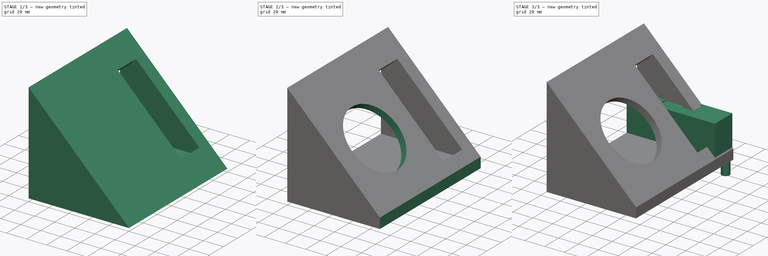
[diagram: build sequence overview — one tinted view per stage of 3, left to right]
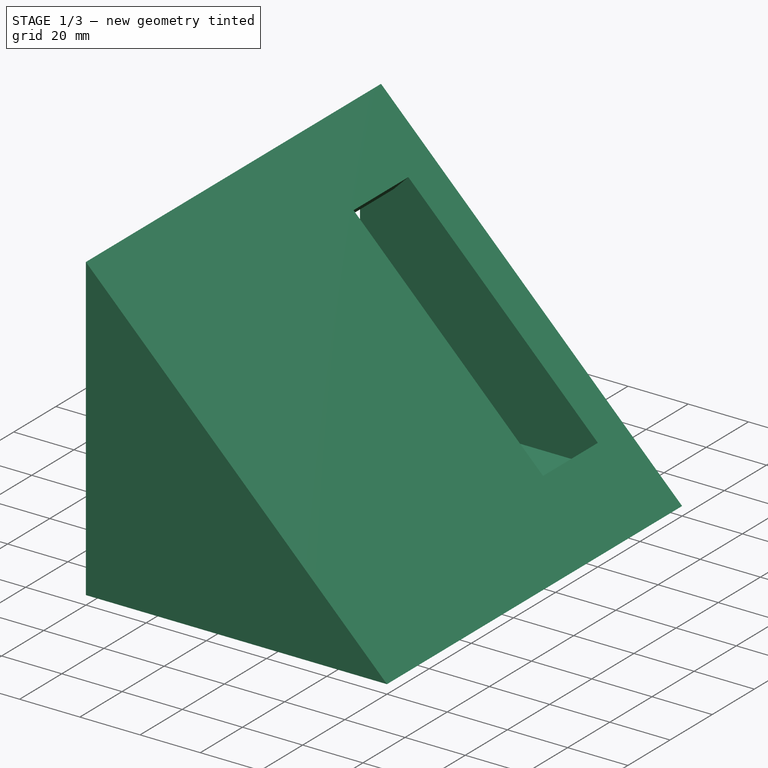
[diagram: stage 1 of 3 — iso view after this stage's code; geometry added in this stage tinted green]
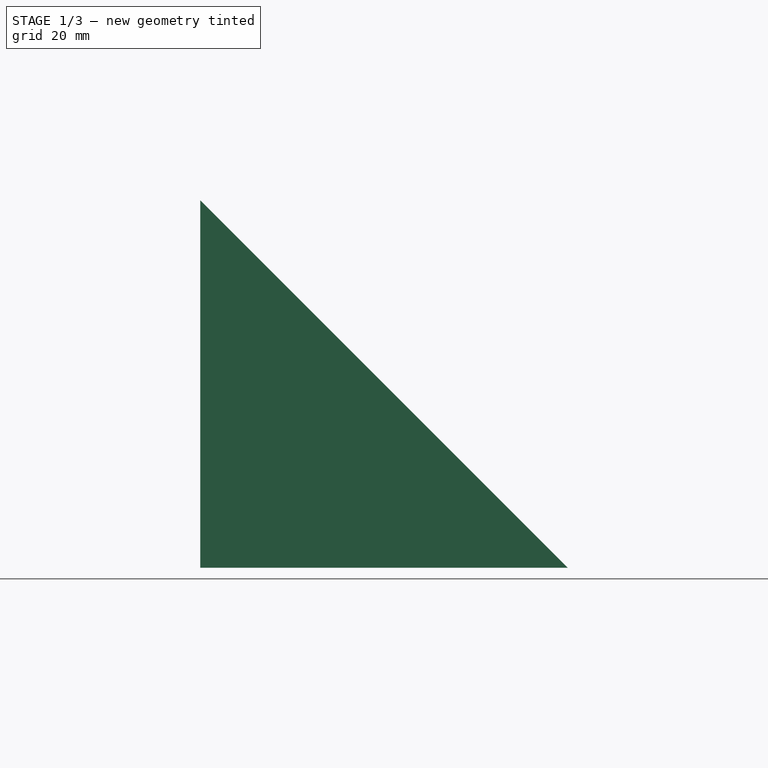
[diagram: stage 1 of 3 — front view after this stage's code; geometry added in this stage tinted green]
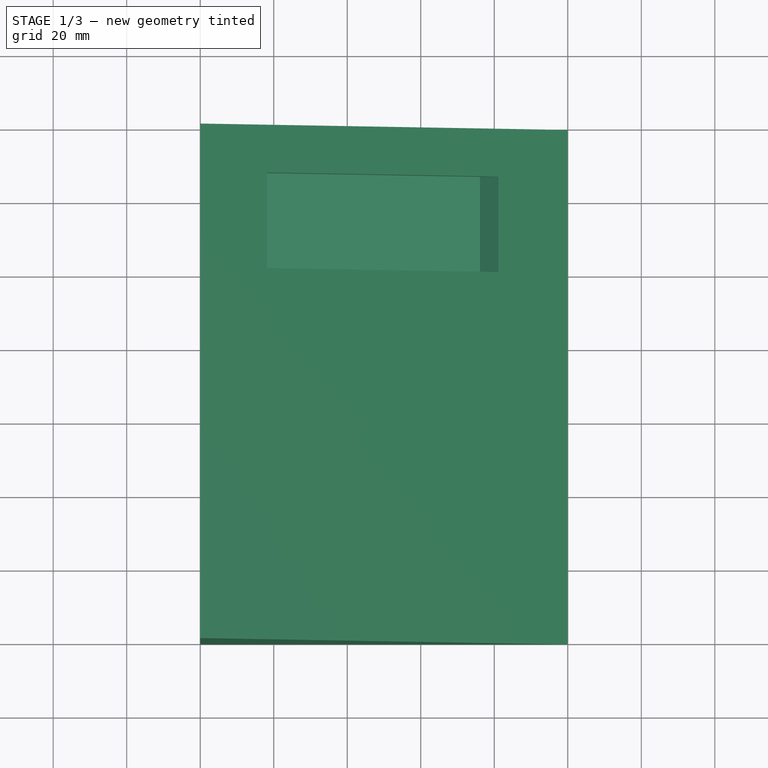
[diagram: stage 1 of 3 — top view after this stage's code; geometry added in this stage tinted green]
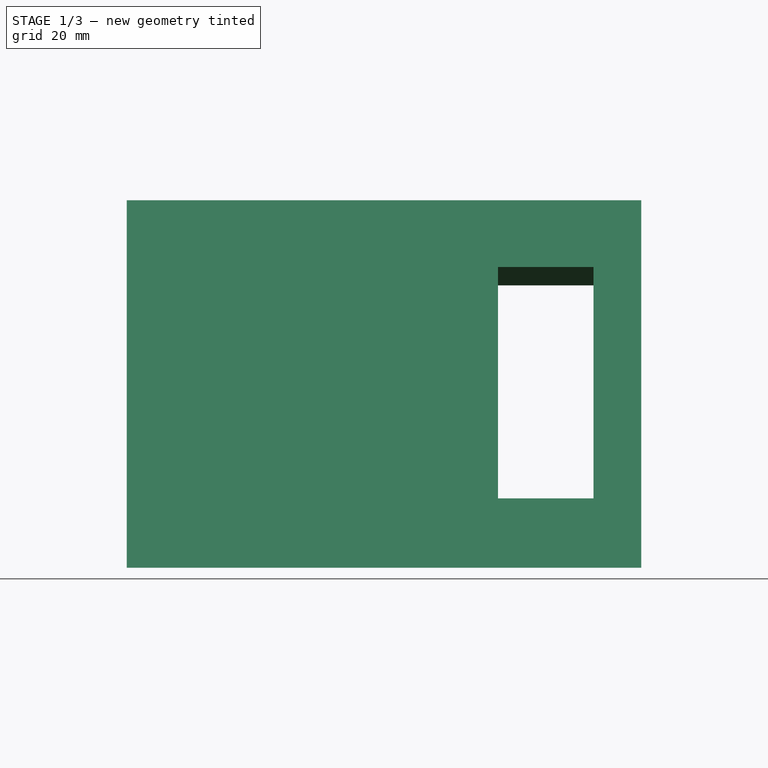
[diagram: stage 1 of 3 — right view after this stage's code; geometry added in this stage tinted green]
FCSTD DOCUMENT  (FreeCAD 0.20R29177 +426 (Git))
Label: stand
License: All rights reserved
LicenseURL: http://en.wikipedia.org/wiki/All_rights_reserved
objects: Sketcher::SketchObject×7, PartDesign::Pocket×4, PartDesign::Pad×3, PartDesign::Body×2, PartDesign::Chamfer×1
note: 25 computed .brp shape members not serialized (recipe doc carries the construction recipe); baked Part::Feature solids carry a one-line shape summary decoded from their .brp

FEATURE [Sketcher::SketchObject] Sketch
  FullyConstrained = true
  Placement = pos=(0,0,0) rot=(1,0,0;1.5708rad)
  sketch-geometry (3):
    g0: LineSegment StartX=0 StartY=0 StartZ=0 EndX=100 EndY=0 EndZ=0
    g1: LineSegment StartX=100 StartY=0 StartZ=0 EndX=0 EndY=100 EndZ=0
    g2: LineSegment StartX=0 StartY=100 StartZ=0 EndX=0 EndY=0 EndZ=0
  constraints (8):
    c: Coincident(g0,g-1)
    c: PointOnObject(g0,g-1)
    c: Coincident(g1,g0)
    c: PointOnObject(g1,g-2)
    c: Coincident(g2,g1)
    c: Coincident(g2,g0)
    c: DistanceY(g2,g2) = 100
    c: DistanceX(g0,g0) = 100
FEATURE [PartDesign::Pad] Pad
  Direction = (0,-1,2e-16)
  Length = 140
  Length2 = 10
  Placement = pos=(0,0,0) rot=(1,0,0;1.5708rad)
  Profile = -> Sketch
  ReferenceAxis = -> Sketch [N_Axis]
  Type = 0
FEATURE [PartDesign::Body] Body001
  Group = -> [Sketch001,Pad001,Sketch002,Pad002,Sketch003,Pocket]
  Origin = -> Origin001
  Placement = pos=(18,-13.5,82) rot=(0,1,0;0.785398rad)
  Tip = -> Pocket
FEATURE [Sketcher::SketchObject] Sketch004
  FullyConstrained = true
  MapMode = 5
  Placement = pos=(50,1.67e-14,50) rot=(0.382683,0,0.92388;3.14159rad)
  Support = -> [Pad]
  sketch-geometry (4):
    g0: LineSegment StartX=45 StartY=39 StartZ=0 EndX=-44 EndY=39 EndZ=0
    g1: LineSegment StartX=-44 StartY=39 StartZ=0 EndX=-44 EndY=13 EndZ=0
    g2: LineSegment StartX=-44 StartY=13 StartZ=0 EndX=45 EndY=13 EndZ=0
    g3: LineSegment StartX=45 StartY=13 StartZ=0 EndX=45 EndY=39 EndZ=0
  constraints (12):
    c: Coincident(g0,g1)
    c: Coincident(g1,g2)
    c: Coincident(g2,g3)
    c: Coincident(g3,g0)
    c: Horizontal(g0)
    c: Horizontal(g2)
    c: Vertical(g1)
    c: Vertical(g3)
    c: DistanceX(g0,g0) = 89
    c: DistanceY(g3,g3) = 26
    c: DistanceY(g-1,g2) = 13
    c: DistanceX(g1,g-1) = 44
FEATURE [PartDesign::Pocket] Pocket001
  BaseFeature = -> Pad
  Direction = (-0.707107,-2e-16,-0.707107)
  Length = 8
  Length2 = 5
  Placement = pos=(0,0,0) rot=(1,0,0;1.5708rad)
  Profile = -> Sketch004
  ReferenceAxis = -> Sketch004 [N_Axis]
  Type = 0
FEATURE [Sketcher::SketchObject] Sketch006
  AttachmentOffset = pos=(0,0,-10) rot=(0,0,1;0rad)
  FullyConstrained = false
  MapMode = 5
  Placement = pos=(0,-10,2.2e-15) rot=(-1,0,0;1.5708rad)
  Support = -> [Pad]
  sketch-geometry (3):
    g0: LineSegment StartX=0 StartY=-10 StartZ=0 EndX=80 EndY=-10 EndZ=0
    g1: LineSegment StartX=80 StartY=-10 StartZ=0 EndX=0 EndY=-90 EndZ=0
    g2: LineSegment StartX=0 StartY=-90 StartZ=0 EndX=0 EndY=-10 EndZ=0
  constraints (6):
    c: PointOnObject(g0,g-2)
    c: Horizontal(g0)
    c: Coincident(g1,g0)
    c: PointOnObject(g1,g-2)
    c: Coincident(g2,g1)
    c: Coincident(g2,g0)
FEATURE [PartDesign::Pocket] Pocket002
  BaseFeature = -> Pocket001
  Direction = (0,-1,2e-16)
  Length = 120
  Length2 = 5
  Placement = pos=(0,0,0) rot=(1,0,0;1.5708rad)
  Profile = -> Sketch006
  ReferenceAxis = -> Sketch006 [N_Axis]
  Type = 0
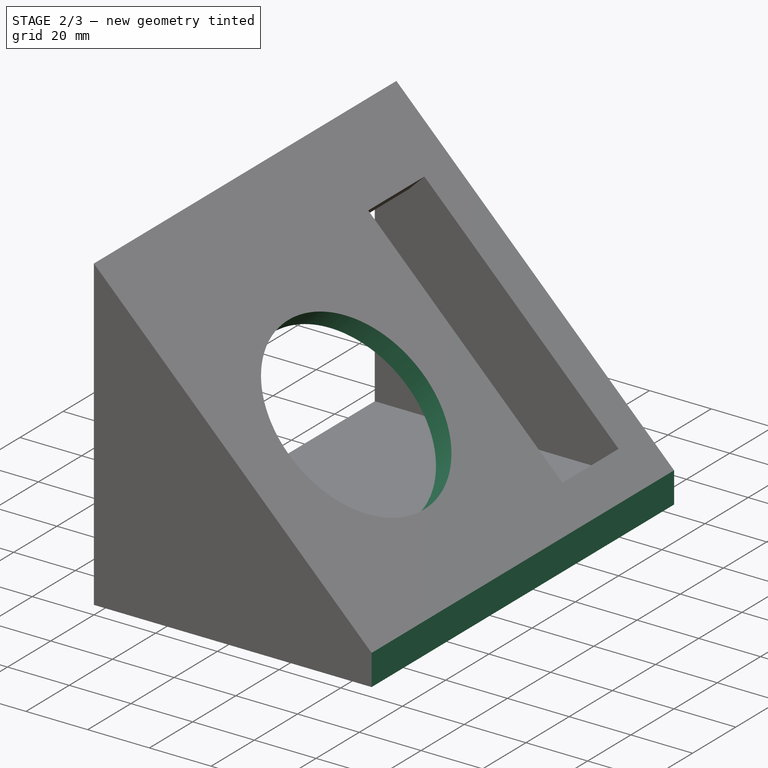
[diagram: stage 2 of 3 — iso view after this stage's code; geometry added in this stage tinted green]
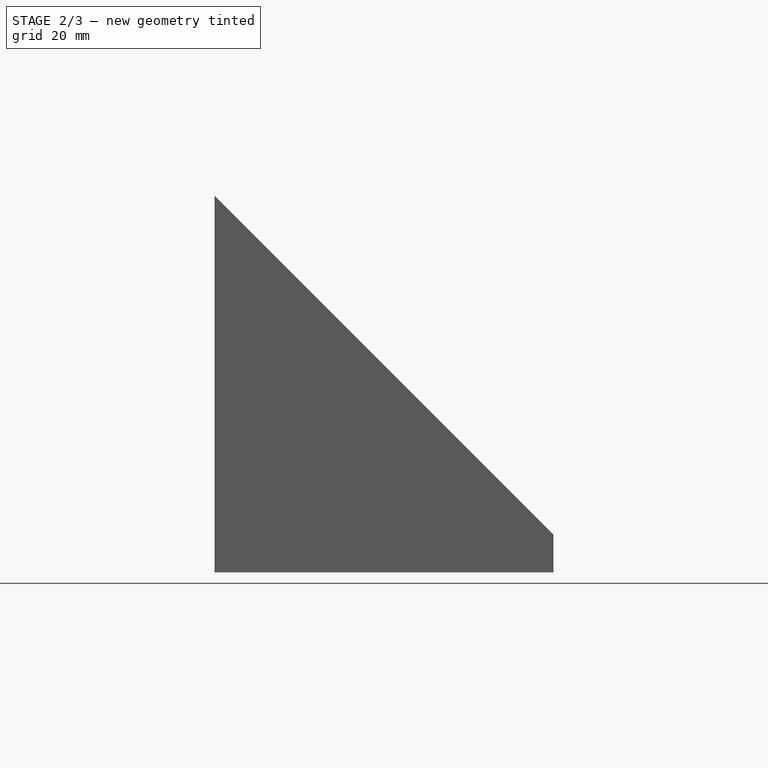
[diagram: stage 2 of 3 — front view after this stage's code; geometry added in this stage tinted green]
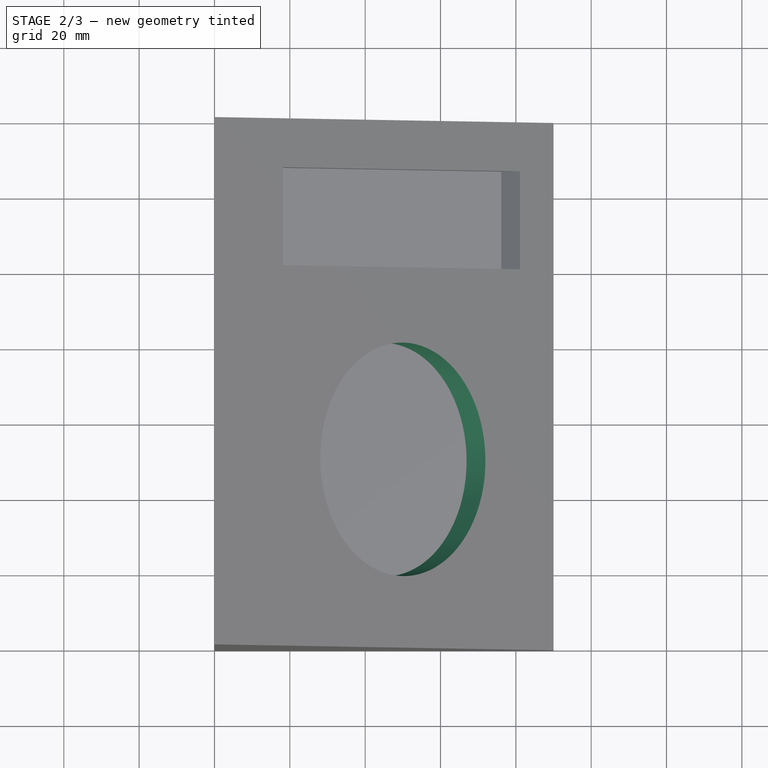
[diagram: stage 2 of 3 — top view after this stage's code; geometry added in this stage tinted green]
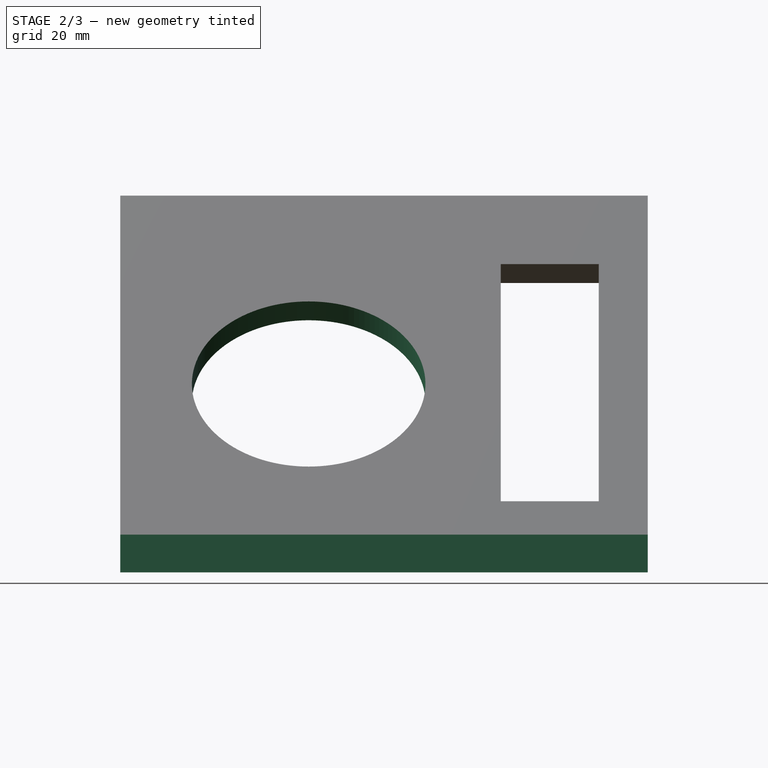
[diagram: stage 2 of 3 — right view after this stage's code; geometry added in this stage tinted green]
FEATURE [Sketcher::SketchObject] Sketch005
  FullyConstrained = true
  MapMode = 5
  Placement = pos=(50,2.78e-14,50) rot=(0.382683,0,0.92388;3.14159rad)
  Support = -> [Pocket002]
  sketch-geometry (1):
    g0: Circle CenterX=0 CenterY=90 CenterZ=0 NormalX=0 NormalY=0 NormalZ=1 AngleXU=0 Radius=31
  constraints (3):
    c: PointOnObject(g0,g-2)
    c: Diameter(g0) = 62
    c: DistanceY(g-1,g0) = 90
FEATURE [PartDesign::Pocket] Pocket003
  BaseFeature = -> Pocket002
  Direction = (-0.707107,-4e-16,-0.707107)
  Length = 0
  Length2 = 5
  Placement = pos=(0,0,0) rot=(1,0,0;1.5708rad)
  Profile = -> Sketch005
  ReferenceAxis = -> Sketch005 [N_Axis]
  Type = 2
FEATURE [PartDesign::Chamfer] Chamfer
  Angle = 90
  Base = -> Pocket003 [Edge4]
  BaseFeature = -> Pocket003
  ChamferType = 1
  FlipDirection = false
  Placement = pos=(0,0,0) rot=(1,0,0;1.5708rad)
  Size = 10
  Size2 = 14.15
  SupportTransform = false
  UseAllEdges = false
FEATURE [PartDesign::Body] Body
  Group = -> [Sketch,Pad,Sketch004,Pocket001,Sketch006,Pocket002,Sketch005,Pocket003,Chamfer]
  Origin = -> Origin
  Tip = -> Chamfer
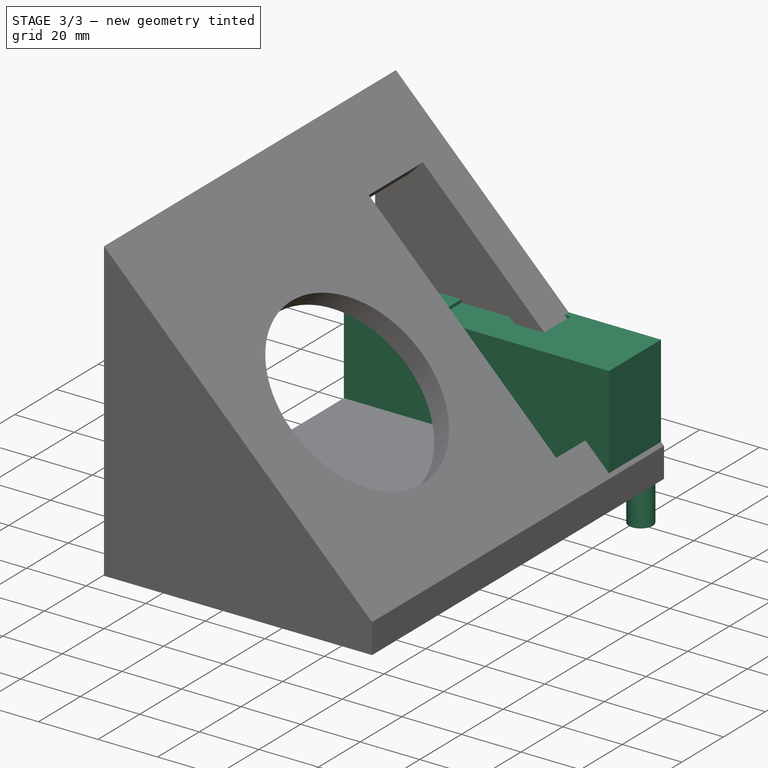
[diagram: stage 3 of 3 — iso view after this stage's code; geometry added in this stage tinted green]
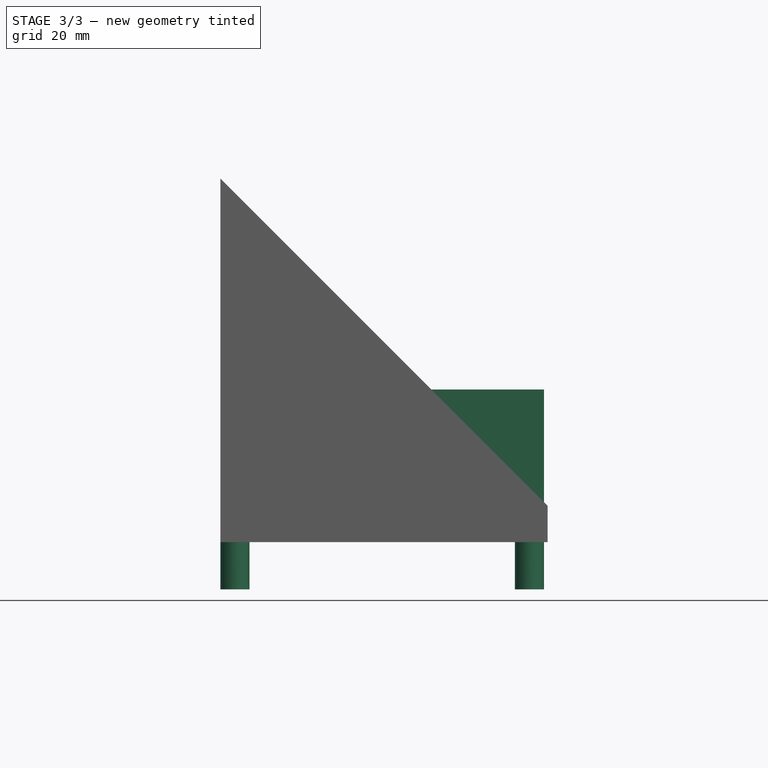
[diagram: stage 3 of 3 — front view after this stage's code; geometry added in this stage tinted green]
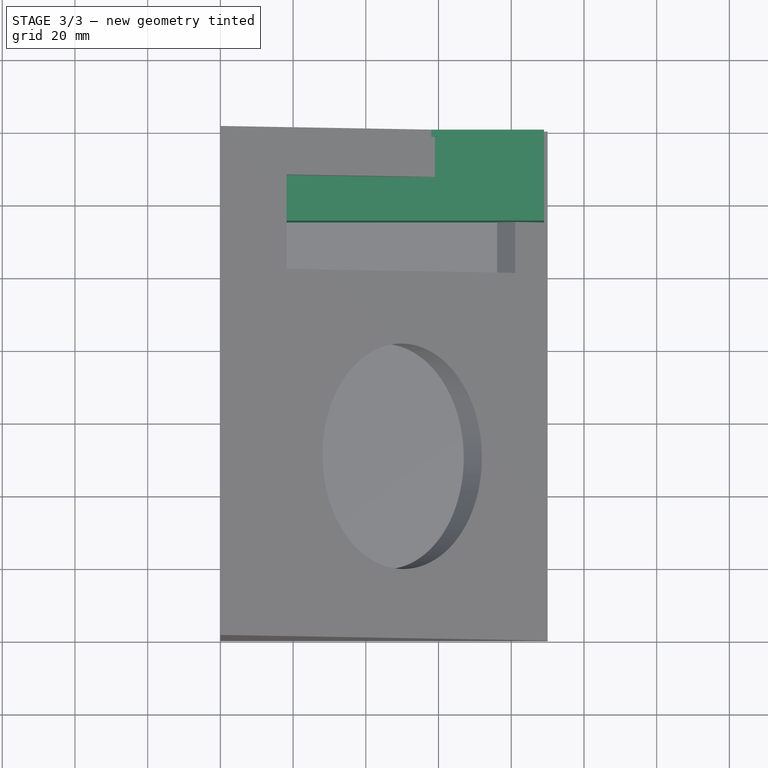
[diagram: stage 3 of 3 — top view after this stage's code; geometry added in this stage tinted green]
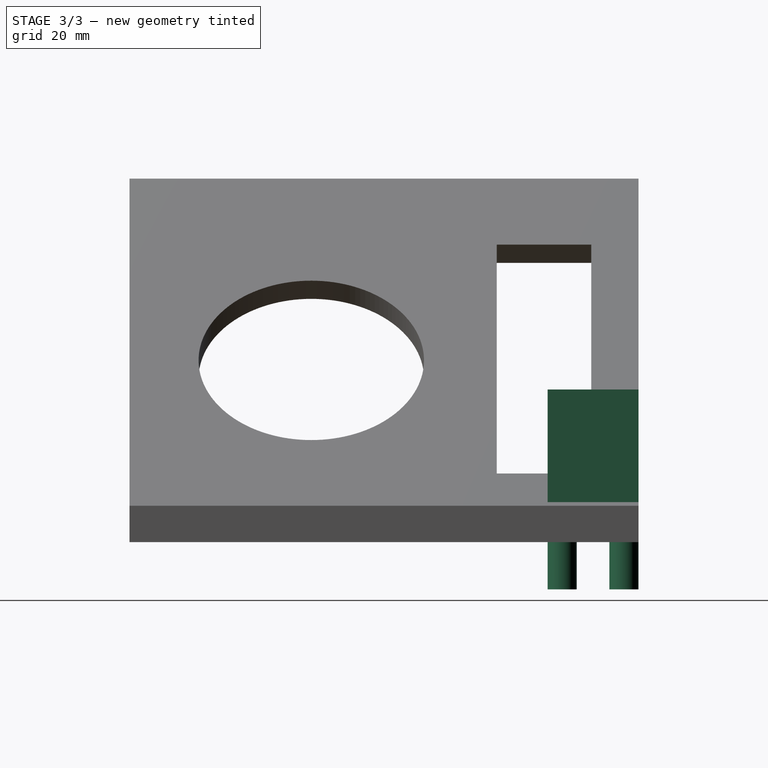
[diagram: stage 3 of 3 — right view after this stage's code; geometry added in this stage tinted green]
FEATURE [Sketcher::SketchObject] Sketch001
  FullyConstrained = true
  MapMode = 5
  Support = -> [XY_Plane001]
  sketch-geometry (4):
    g0: LineSegment StartX=0 StartY=0 StartZ=0 EndX=89 EndY=0 EndZ=0
    g1: LineSegment StartX=89 StartY=0 StartZ=0 EndX=89 EndY=-25 EndZ=0
    g2: LineSegment StartX=89 StartY=-25 StartZ=0 EndX=0 EndY=-25 EndZ=0
    g3: LineSegment StartX=0 StartY=-25 StartZ=0 EndX=0 EndY=0 EndZ=0
  constraints (11):
    c: Coincident(g0,g1)
    c: Coincident(g1,g2)
    c: Coincident(g2,g3)
    c: Coincident(g3,g0)
    c: Horizontal(g0)
    c: Horizontal(g2)
    c: Vertical(g1)
    c: Vertical(g3)
    c: Coincident(g0,g-1)
    c: DistanceX(g0,g0) = 89
    c: DistanceY(g1,g1) = 25
FEATURE [PartDesign::Pad] Pad001
  Direction = (0,0,1)
  Length = 42
  Length2 = 10
  Profile = -> Sketch001
  ReferenceAxis = -> Sketch001 [N_Axis]
  Type = 0
FEATURE [Sketcher::SketchObject] Sketch002
  FullyConstrained = true
  MapMode = 5
  Placement = pos=(0,0,0) rot=(1,0,0;3.14159rad)
  Support = -> [Pad001]
  sketch-geometry (6):
    g0: Circle CenterX=85 CenterY=4 CenterZ=0 NormalX=0 NormalY=0 NormalZ=1 AngleXU=0 Radius=4
    g1: Circle CenterX=4 CenterY=21 CenterZ=0 NormalX=0 NormalY=0 NormalZ=1 AngleXU=0 Radius=4
    g2: LineSegment StartX=0 StartY=0 StartZ=0 EndX=89 EndY=0 EndZ=0
    g3: LineSegment StartX=89 StartY=0 StartZ=0 EndX=89 EndY=25 EndZ=0
    g4: LineSegment StartX=89 StartY=25 StartZ=0 EndX=0 EndY=25 EndZ=0
    g5: LineSegment StartX=0 StartY=25 StartZ=0 EndX=0 EndY=0 EndZ=0
  constraints (17):
    c: Coincident(g2,g3)
    c: Coincident(g3,g4)
    c: Coincident(g4,g5)
    c: Coincident(g5,g2)
    c: Horizontal(g2)
    c: Horizontal(g4)
    c: Vertical(g3)
    c: Vertical(g5)
    c: Coincident(g2,g-1)
    c: DistanceX(g4,g4) = 89
    c: DistanceY(g3,g3) = 25
    c: DistanceX(g0,g2) = 4
    c: DistanceY(g2,g0) = 4
    c: Diameter(g0) = 8
    c: Diameter(g1) = 8
    c: DistanceY(g1,g4) = 4
    c: DistanceX(g4,g1) = 4
FEATURE [PartDesign::Pad] Pad002
  BaseFeature = -> Pad001
  Direction = (0,0,-1)
  Length = 13
  Length2 = 10
  Profile = -> Sketch002
  ReferenceAxis = -> Sketch002 [N_Axis]
  Type = 0
FEATURE [Sketcher::SketchObject] Sketch003
  FullyConstrained = true
  MapMode = 5
  Placement = pos=(0,0,42) rot=(0,0,1;0rad)
  Support = -> [Pad002]
  sketch-geometry (4):
    g0: LineSegment StartX=29 StartY=-2 StartZ=0 EndX=60 EndY=-2 EndZ=0
    g1: LineSegment StartX=60 StartY=-2 StartZ=0 EndX=60 EndY=-23 EndZ=0
    g2: LineSegment StartX=60 StartY=-23 StartZ=0 EndX=29 EndY=-23 EndZ=0
    g3: LineSegment StartX=29 StartY=-23 StartZ=0 EndX=29 EndY=-2 EndZ=0
  constraints (12):
    c: Coincident(g0,g1)
    c: Coincident(g1,g2)
    c: Coincident(g2,g3)
    c: Coincident(g3,g0)
    c: Horizontal(g0)
    c: Horizontal(g2)
    c: Vertical(g1)
    c: Vertical(g3)
    c: DistanceY(g0,g-1) = 2
    c: DistanceX(g-1,g0) = 29
    c: DistanceX(g0,g0) = 31
    c: DistanceY(g1,g1) = 21
FEATURE [PartDesign::Pocket] Pocket
  BaseFeature = -> Pad002
  Direction = (0,0,-1)
  Length = 1
  Length2 = 5
  Profile = -> Sketch003
  ReferenceAxis = -> Sketch003 [N_Axis]
  Type = 0
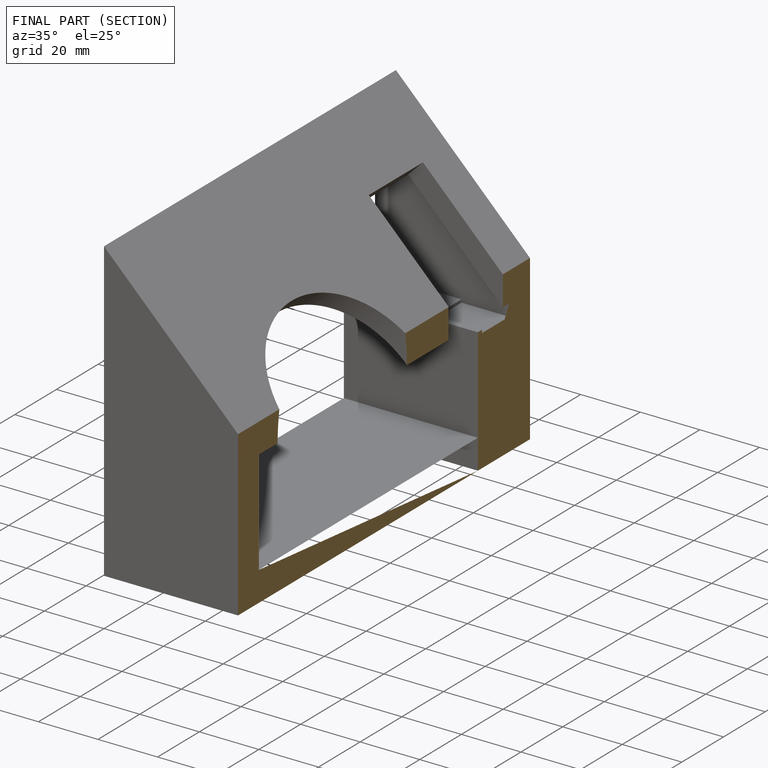
[diagram: finished part — half-section view (interior)]
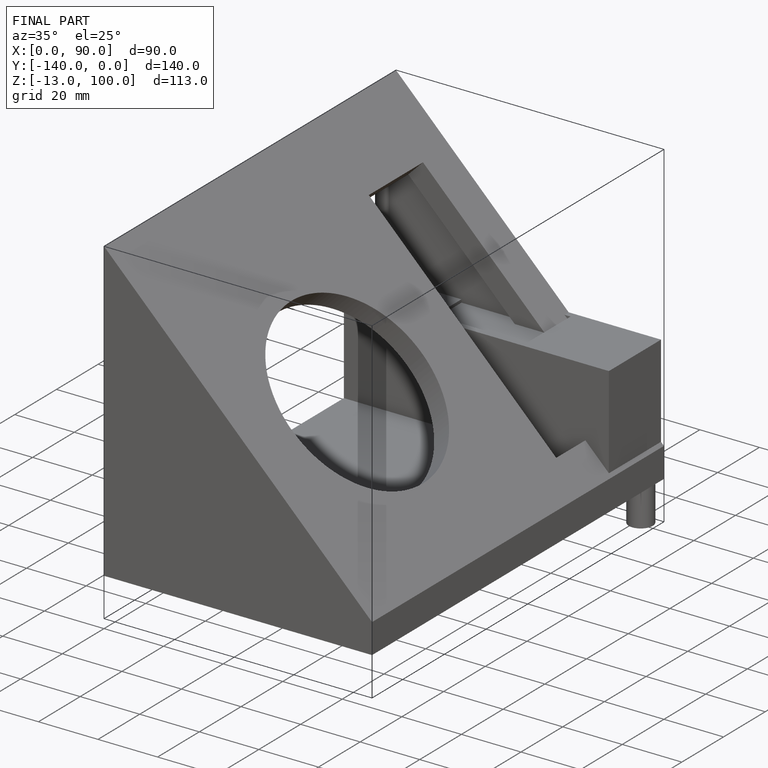
[diagram: finished part — iso view with bounding-box wireframe]
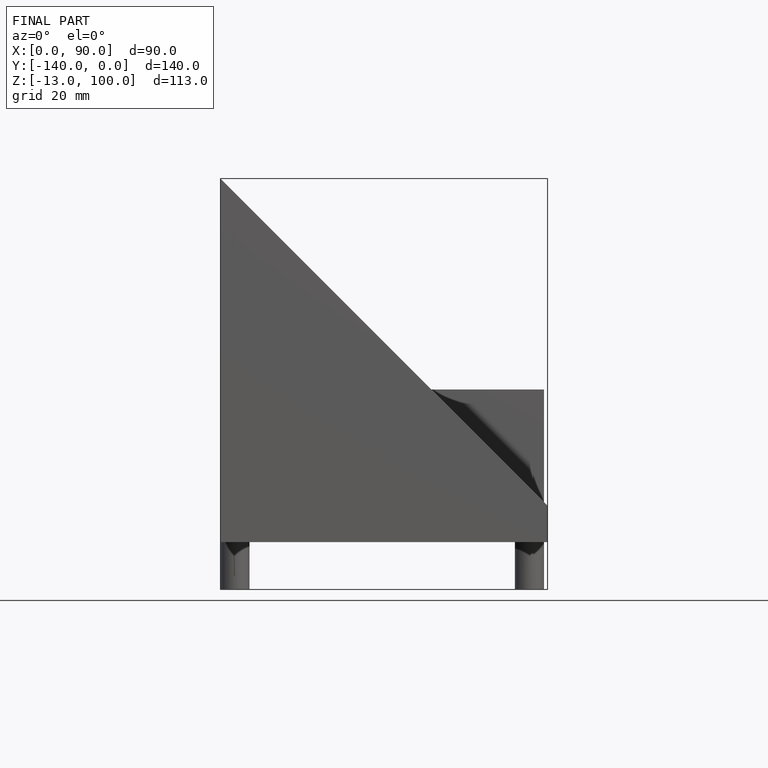
[diagram: finished part — front view with bounding-box wireframe]
